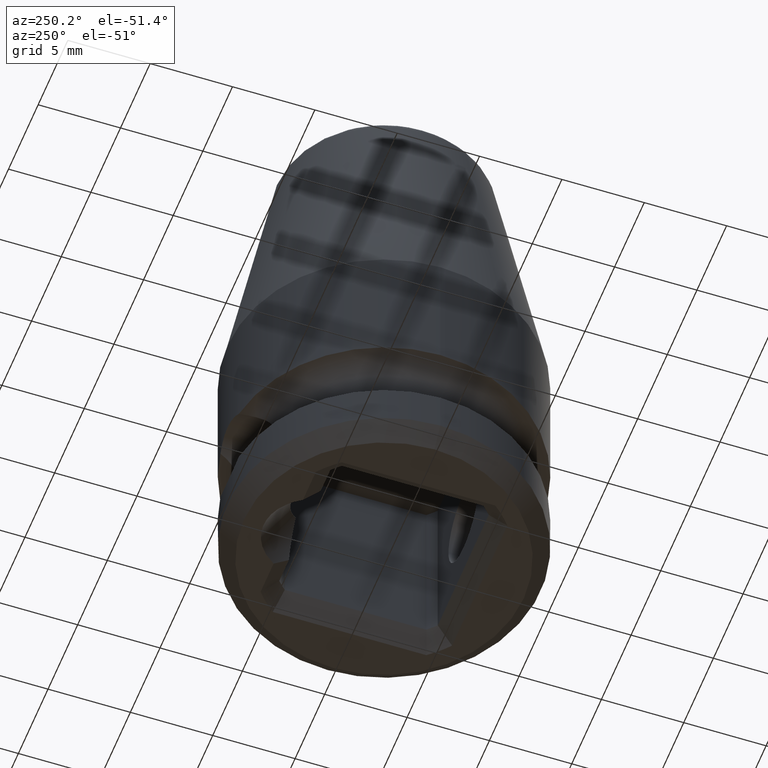
[diagram: clean part render]
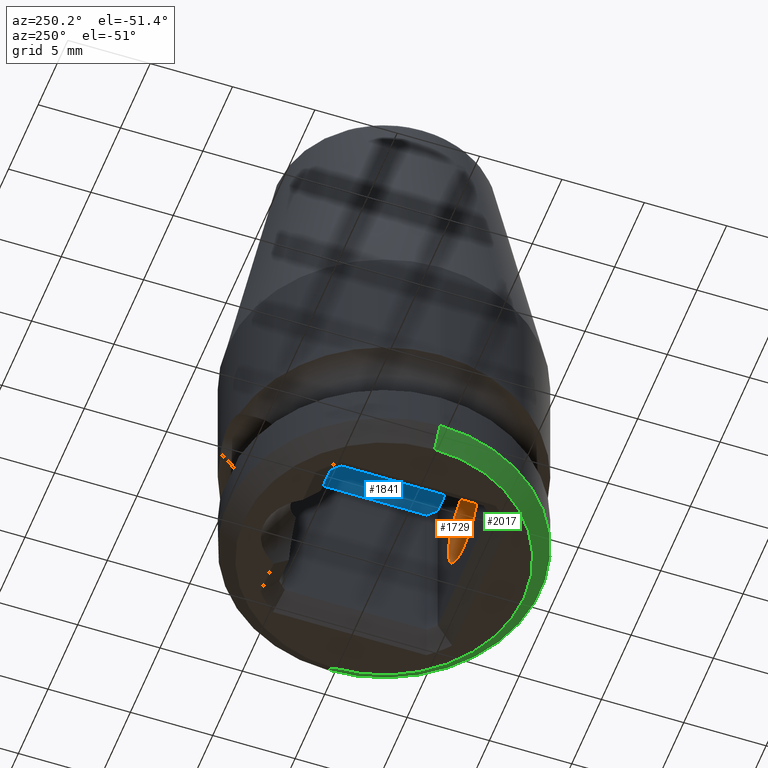
[diagram: same view with three faces highlighted in distinct colors, each labeled with its STEP entity id]
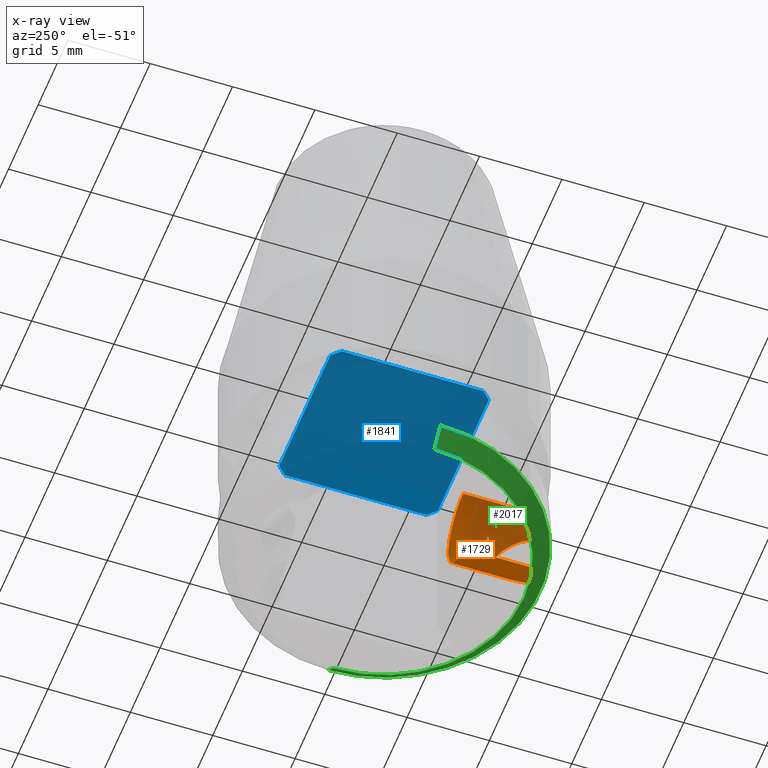
[diagram: x-ray of the same camera — body ghosted, the three highlighted faces saturated]
A machine part, auxiliary view with three faces highlighted in distinct colors.
The next image is the same camera in x-ray (body ghosted, the three faces saturated) — at least one of them is partly hidden behind the body in this view.
Their STEP definitions:

[orange] entity #1729 — the highlighted cylindrical surface (partial cylindrical patch) has radius 2.5 mm, axis along (0, 1, 0).
#347=CARTESIAN_POINT('',(0.E0,-9.5E0,3.E0));
#355=CARTESIAN_POINT('',(1.552417469626E0,-9.372299611088E0,3.540408205773E0));
#356=CARTESIAN_POINT('',(1.443237128478E0,-9.390384123531E0,3.453913932100E0));
#357=CARTESIAN_POINT('',(1.212494383505E0,-9.424689360846E0,3.300580072540E0));
#358=CARTESIAN_POINT('',(8.268716970890E-1,-9.466919348661E0,3.127534494170E0));
#359=CARTESIAN_POINT('',(4.057850254116E-1,-9.494399549432E0,3.021119495124E0));
#360=CARTESIAN_POINT('',(1.353216462616E-1,-9.5E0,3.E0));
#361=CARTESIAN_POINT('',(0.E0,-9.5E0,3.E0));
#392=CARTESIAN_POINT('',(0.E0,-9.5E0,8.E0));
#393=CARTESIAN_POINT('',(1.358857076017E-1,-9.5E0,8.E0));
#394=CARTESIAN_POINT('',(4.070943296378E-1,-9.494332334003E0,7.978621960406E0));
#395=CARTESIAN_POINT('',(8.265553413247E-1,-9.466934421094E0,7.872523092860E0));
#396=CARTESIAN_POINT('',(1.212594998693E0,-9.424683752534E0,7.699397886738E0));
#397=CARTESIAN_POINT('',(1.443237561321E0,-9.390384051835E0,7.546085724995E0));
#398=CARTESIAN_POINT('',(1.552417469626E0,-9.372299611088E0,7.459591794227E0));
#406=CARTESIAN_POINT('',(0.E0,-9.5E0,8.E0));
#426=DIRECTION('',(0.E0,-1.E0,0.E0));
#427=VECTOR('',#426,4.6875E0);
#428=CARTESIAN_POINT('',(0.E0,-4.8125E0,3.E0));
#429=LINE('',#428,#427);
#673=DIRECTION('',(0.E0,-1.E0,0.E0));
#674=VECTOR('',#673,4.6875E0);
#675=CARTESIAN_POINT('',(0.E0,-4.8125E0,8.E0));
#676=LINE('',#675,#674);
#677=CARTESIAN_POINT('',(1.552417469626E0,-9.372299611088E0,7.459591794227E0));
#678=CARTESIAN_POINT('',(1.566228030608E0,-9.315682346774E0,7.448650864490E0));
#679=CARTESIAN_POINT('',(1.598215236398E0,-9.204606461968E0,7.422841874006E0));
#680=CARTESIAN_POINT('',(1.656660210873E0,-9.042348268043E0,7.372904347704E0));
#681=CARTESIAN_POINT('',(1.721599660475E0,-8.887289532420E0,7.313542258376E0));
#682=CARTESIAN_POINT('',(1.790138071949E0,-8.739757909616E0,7.246060542133E0));
#683=CARTESIAN_POINT('',(1.861727141584E0,-8.596664694944E0,7.169739736074E0));
#684=CARTESIAN_POINT('',(1.938939450182E0,-8.450729953897E0,7.079846077406E0));
#685=CARTESIAN_POINT('',(2.023634839425E0,-8.297589354695E0,6.970491709035E0));
#686=CARTESIAN_POINT('',(2.114545475853E0,-8.138756425100E0,6.837363525287E0));
#687=CARTESIAN_POINT('',(2.208095537918E0,-7.979296248619E0,6.677936803776E0));
#688=CARTESIAN_POINT('',(2.302134329316E0,-7.821631804141E0,6.483837237786E0));
#689=CARTESIAN_POINT('',(2.389875032043E0,-7.675959998487E0,6.250189320496E0));
#690=CARTESIAN_POINT('',(2.463457146155E0,-7.554337153768E0,5.964197512596E0));
#691=CARTESIAN_POINT('',(2.503313846159E0,-7.488526325062E0,5.636280724552E0));
#692=CARTESIAN_POINT('',(2.500518491824E0,-7.493142407713E0,5.316845973886E0));
#693=CARTESIAN_POINT('',(2.453331230266E0,-7.571059082555E0,4.984254190880E0));
#694=CARTESIAN_POINT('',(2.373359775702E0,-7.703298028552E0,4.698833126638E0));
#695=CARTESIAN_POINT('',(2.278715483805E0,-7.860677901923E0,4.462729698781E0));
#696=CARTESIAN_POINT('',(2.178939395986E0,-8.028600656263E0,4.268928859997E0));
#697=CARTESIAN_POINT('',(2.081671650157E0,-8.195601994397E0,4.112103227515E0));
#698=CARTESIAN_POINT('',(1.989944338122E0,-8.357751434291E0,3.984422151735E0));
#699=CARTESIAN_POINT('',(1.907504344493E0,-8.509287348423E0,3.882545075865E0));
#700=CARTESIAN_POINT('',(1.834245962794E0,-8.650649211269E0,3.800299380673E0));
#701=CARTESIAN_POINT('',(1.767892130544E0,-8.786551912141E0,3.731588553077E0));
#702=CARTESIAN_POINT('',(1.705511854324E0,-8.924453169354E0,3.671471416194E0));
#703=CARTESIAN_POINT('',(1.646943609455E0,-9.068105782566E0,3.618665913291E0));
#704=CARTESIAN_POINT('',(1.594306722679E0,-9.217641112881E0,3.573993283622E0));
#705=CARTESIAN_POINT('',(1.565147223550E0,-9.320113183360E0,3.550492904247E0));
#706=CARTESIAN_POINT('',(1.552417469626E0,-9.372299611088E0,3.540408205773E0));
#903=CARTESIAN_POINT('',(0.E0,-4.8125E0,5.5E0));
#904=DIRECTION('',(0.E0,1.E0,0.E0));
#905=DIRECTION('',(0.E0,0.E0,1.E0));
#906=AXIS2_PLACEMENT_3D('',#903,#904,#905);
#995=VERTEX_POINT('',#347);
#998=VERTEX_POINT('',#406);
#999=VERTEX_POINT('',#398);
#1000=VERTEX_POINT('',#355);
#1001=CARTESIAN_POINT('',(0.E0,-4.8125E0,3.E0));
#1002=CARTESIAN_POINT('',(0.E0,-4.8125E0,8.E0));
#1003=VERTEX_POINT('',#1001);
#1004=VERTEX_POINT('',#1002);
#1714=CARTESIAN_POINT('',(0.E0,-1.14E1,5.5E0));
#1715=DIRECTION('',(0.E0,1.E0,0.E0));
#1716=DIRECTION('',(0.E0,0.E0,-1.E0));
#1717=AXIS2_PLACEMENT_3D('',#1714,#1715,#1716);
#1718=CYLINDRICAL_SURFACE('',#1717,2.5E0);
#1719=ORIENTED_EDGE('',*,*,#1525,.T.);
#1721=ORIENTED_EDGE('',*,*,#1720,.T.);
#1722=ORIENTED_EDGE('',*,*,#1500,.T.);
#1723=ORIENTED_EDGE('',*,*,#1572,.F.);
#1725=ORIENTED_EDGE('',*,*,#1724,.F.);
#1726=ORIENTED_EDGE('',*,*,#1568,.T.);
#1727=EDGE_LOOP('',(#1719,#1721,#1722,#1723,#1725,#1726));
#1728=FACE_OUTER_BOUND('',#1727,.F.);
#1729=ADVANCED_FACE('',(#1728),#1718,.F.);
#362=B_SPLINE_CURVE_WITH_KNOTS('',3,(#355,#356,#357,#358,#359,#360,#361),
.UNSPECIFIED.,.F.,.F.,(4,1,1,1,4),(0.E0,2.5E-1,5.E-1,7.5E-1,1.E0),
.UNSPECIFIED.);
#399=B_SPLINE_CURVE_WITH_KNOTS('',3,(#392,#393,#394,#395,#396,#397,#398),
.UNSPECIFIED.,.F.,.F.,(4,1,1,1,4),(0.E0,2.5E-1,5.E-1,7.5E-1,1.E0),
.UNSPECIFIED.);
#707=B_SPLINE_CURVE_WITH_KNOTS('',3,(#677,#678,#679,#680,#681,#682,#683,#684,
#685,#686,#687,#688,#689,#690,#691,#692,#693,#694,#695,#696,#697,#698,#699,#700,
#701,#702,#703,#704,#705,#706),.UNSPECIFIED.,.F.,.F.,(4,1,1,1,1,1,1,1,1,1,1,1,1,
1,1,1,1,1,1,1,1,1,1,1,1,1,1,4),(0.E0,3.703703703704E-2,7.407407407407E-2,
1.111111111111E-1,1.481481481481E-1,1.851851851852E-1,2.222222222222E-1,
2.592592592593E-1,2.962962962963E-1,3.333333333333E-1,3.703703703704E-1,
4.074074074074E-1,4.444444444444E-1,4.814814814815E-1,5.185185185185E-1,
5.555555555556E-1,5.925925925926E-1,6.296296296296E-1,6.666666666667E-1,
7.037037037037E-1,7.407407407407E-1,7.777777777778E-1,8.148148148148E-1,
8.518518518519E-1,8.888888888889E-1,9.259259259259E-1,9.629629629630E-1,1.E0),
.UNSPECIFIED.);
#907=CIRCLE('',#906,2.5E0);
#1500=EDGE_CURVE('',#1000,#995,#362,.T.);
#1525=EDGE_CURVE('',#998,#999,#399,.T.);
#1568=EDGE_CURVE('',#1004,#998,#676,.T.);
#1572=EDGE_CURVE('',#1003,#995,#429,.T.);
#1720=EDGE_CURVE('',#999,#1000,#707,.T.);
#1724=EDGE_CURVE('',#1004,#1003,#907,.T.);

[blue] entity #1841 — the highlighted planar face has unit normal (0, 0, -1).
#792=CARTESIAN_POINT('',(0.E0,0.E0,1.15E1));
#793=DIRECTION('',(0.E0,0.E0,-1.E0));
#794=DIRECTION('',(6.658069767979E-1,7.461240310078E-1,0.E0));
#795=AXIS2_PLACEMENT_3D('',#792,#793,#794);
#797=DIRECTION('',(1.E0,0.E0,0.E0));
#798=VECTOR('',#797,8.588910000693E0);
#799=CARTESIAN_POINT('',(-4.294455000346E0,4.8125E0,1.15E1));
#800=LINE('',#799,#798);
#801=CARTESIAN_POINT('',(0.E0,0.E0,1.15E1));
#802=DIRECTION('',(0.E0,0.E0,-1.E0));
#803=DIRECTION('',(-7.461240310078E-1,6.658069767979E-1,0.E0));
#804=AXIS2_PLACEMENT_3D('',#801,#802,#803);
#806=DIRECTION('',(0.E0,1.E0,0.E0));
#807=VECTOR('',#806,8.588910000693E0);
#808=CARTESIAN_POINT('',(-4.8125E0,-4.294455000346E0,1.15E1));
#809=LINE('',#808,#807);
#810=CARTESIAN_POINT('',(0.E0,0.E0,1.15E1));
#811=DIRECTION('',(0.E0,0.E0,-1.E0));
#812=DIRECTION('',(-6.658069767979E-1,-7.461240310078E-1,0.E0));
#813=AXIS2_PLACEMENT_3D('',#810,#811,#812);
#815=DIRECTION('',(-1.E0,0.E0,0.E0));
#816=VECTOR('',#815,8.588910000693E0);
#817=CARTESIAN_POINT('',(4.294455000346E0,-4.8125E0,1.15E1));
#818=LINE('',#817,#816);
#819=CARTESIAN_POINT('',(0.E0,0.E0,1.15E1));
#820=DIRECTION('',(0.E0,0.E0,-1.E0));
#821=DIRECTION('',(7.461240310078E-1,-6.658069767979E-1,0.E0));
#822=AXIS2_PLACEMENT_3D('',#819,#820,#821);
#824=DIRECTION('',(0.E0,-1.E0,0.E0));
#825=VECTOR('',#824,8.588910000693E0);
#826=CARTESIAN_POINT('',(4.8125E0,4.294455000346E0,1.15E1));
#827=LINE('',#826,#825);
#929=CARTESIAN_POINT('',(4.294455000346E0,4.8125E0,1.15E1));
#930=CARTESIAN_POINT('',(4.8125E0,4.294455000346E0,1.15E1));
#931=VERTEX_POINT('',#929);
#932=VERTEX_POINT('',#930);
#933=CARTESIAN_POINT('',(4.8125E0,-4.294455000346E0,1.15E1));
#934=VERTEX_POINT('',#933);
#935=CARTESIAN_POINT('',(4.294455000346E0,-4.8125E0,1.15E1));
#936=VERTEX_POINT('',#935);
#937=CARTESIAN_POINT('',(-4.294455000346E0,-4.8125E0,1.15E1));
#938=VERTEX_POINT('',#937);
#939=CARTESIAN_POINT('',(-4.8125E0,-4.294455000346E0,1.15E1));
#940=VERTEX_POINT('',#939);
#941=CARTESIAN_POINT('',(-4.8125E0,4.294455000346E0,1.15E1));
#942=VERTEX_POINT('',#941);
#943=CARTESIAN_POINT('',(-4.294455000346E0,4.8125E0,1.15E1));
#944=VERTEX_POINT('',#943);
#1820=CARTESIAN_POINT('',(0.E0,0.E0,1.15E1));
#1821=DIRECTION('',(0.E0,0.E0,-1.E0));
#1822=DIRECTION('',(-1.E0,0.E0,0.E0));
#1823=AXIS2_PLACEMENT_3D('',#1820,#1821,#1822);
#1824=PLANE('',#1823);
#1825=ORIENTED_EDGE('',*,*,#1813,.F.);
#1826=ORIENTED_EDGE('',*,*,#1755,.F.);
#1828=ORIENTED_EDGE('',*,*,#1827,.F.);
#1830=ORIENTED_EDGE('',*,*,#1829,.F.);
#1832=ORIENTED_EDGE('',*,*,#1831,.F.);
#1834=ORIENTED_EDGE('',*,*,#1833,.F.);
#1836=ORIENTED_EDGE('',*,*,#1835,.F.);
#1838=ORIENTED_EDGE('',*,*,#1837,.F.);
#1839=EDGE_LOOP('',(#1825,#1826,#1828,#1830,#1832,#1834,#1836,#1838));
#1840=FACE_OUTER_BOUND('',#1839,.F.);
#1841=ADVANCED_FACE('',(#1840),#1824,.T.);
#796=CIRCLE('',#795,6.45E0);
#805=CIRCLE('',#804,6.45E0);
#814=CIRCLE('',#813,6.45E0);
#823=CIRCLE('',#822,6.45E0);
#1755=EDGE_CURVE('',#944,#931,#800,.T.);
#1813=EDGE_CURVE('',#931,#932,#796,.T.);
#1827=EDGE_CURVE('',#942,#944,#805,.T.);
#1829=EDGE_CURVE('',#940,#942,#809,.T.);
#1831=EDGE_CURVE('',#938,#940,#814,.T.);
#1833=EDGE_CURVE('',#936,#938,#818,.T.);
#1835=EDGE_CURVE('',#934,#936,#823,.T.);
#1837=EDGE_CURVE('',#932,#934,#827,.T.);

[green] entity #2017 — the highlighted conical surface has half-angle 45 deg.
#368=CARTESIAN_POINT('',(0.E0,0.E0,1.E0));
#369=DIRECTION('',(0.E0,0.E0,-1.E0));
#370=DIRECTION('',(1.E0,0.E0,0.E0));
#371=AXIS2_PLACEMENT_3D('',#368,#369,#370);
#567=DIRECTION('',(-7.071067811865E-1,-6.639848375795E-10,7.071067811865E-1));
#568=VECTOR('',#567,1.414213562378E0);
#569=CARTESIAN_POINT('',(-8.499999999977E0,5.804831682860E-9,
-2.290197661144E-11));
#570=LINE('',#569,#568);
#611=CARTESIAN_POINT('',(0.E0,0.E0,0.E0));
#612=DIRECTION('',(0.E0,0.E0,-1.E0));
#613=DIRECTION('',(1.E0,0.E0,0.E0));
#614=AXIS2_PLACEMENT_3D('',#611,#612,#613);
#925=DIRECTION('',(7.071067811865E-1,6.639837968287E-10,7.071067811865E-1));
#926=VECTOR('',#925,1.414213562378E0);
#927=CARTESIAN_POINT('',(8.499999999977E0,-5.804829776206E-9,
-2.290079237355E-11));
#928=LINE('',#927,#926);
#981=CARTESIAN_POINT('',(8.5E0,0.E0,0.E0));
#982=CARTESIAN_POINT('',(-8.5E0,0.E0,0.E0));
#983=VERTEX_POINT('',#981);
#984=VERTEX_POINT('',#982);
#985=CARTESIAN_POINT('',(9.5E0,0.E0,1.E0));
#986=CARTESIAN_POINT('',(-9.5E0,0.E0,1.E0));
#987=VERTEX_POINT('',#985);
#988=VERTEX_POINT('',#986);
#2006=CARTESIAN_POINT('',(0.E0,0.E0,4.999999999669E-1));
#2007=DIRECTION('',(0.E0,0.E0,1.E0));
#2008=DIRECTION('',(0.E0,-1.E0,0.E0));
#2009=AXIS2_PLACEMENT_3D('',#2006,#2007,#2008);
#2010=CONICAL_SURFACE('',#2009,8.999999999967E0,4.5E1);
#2011=ORIENTED_EDGE('',*,*,#1649,.T.);
#2012=ORIENTED_EDGE('',*,*,#1639,.T.);
#2013=ORIENTED_EDGE('',*,*,#1506,.F.);
#2014=ORIENTED_EDGE('',*,*,#1636,.F.);
#2015=EDGE_LOOP('',(#2011,#2012,#2013,#2014));
#2016=FACE_OUTER_BOUND('',#2015,.F.);
#2017=ADVANCED_FACE('',(#2016),#2010,.T.);
#372=CIRCLE('',#371,9.5E0);
#615=CIRCLE('',#614,8.5E0);
#1506=EDGE_CURVE('',#987,#988,#372,.T.);
#1636=EDGE_CURVE('',#983,#987,#928,.T.);
#1639=EDGE_CURVE('',#984,#988,#570,.T.);
#1649=EDGE_CURVE('',#983,#984,#615,.T.);